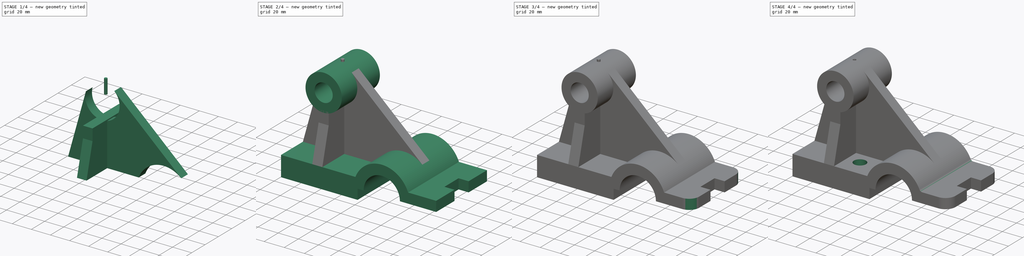
[diagram: build sequence overview — one tinted view per stage of 4, left to right]
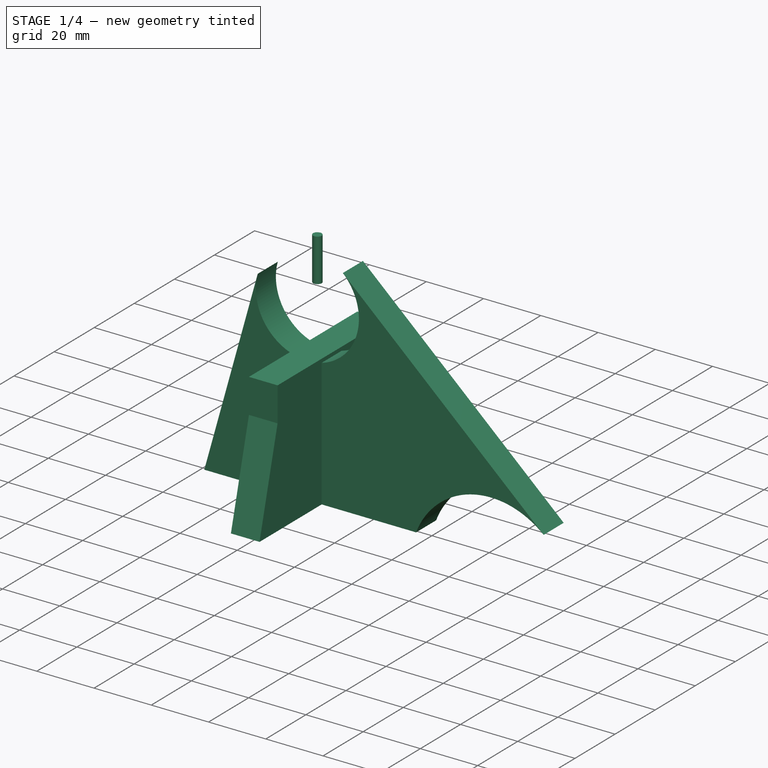
[diagram: stage 1 of 4 — iso view after this stage's code; geometry added in this stage tinted green]
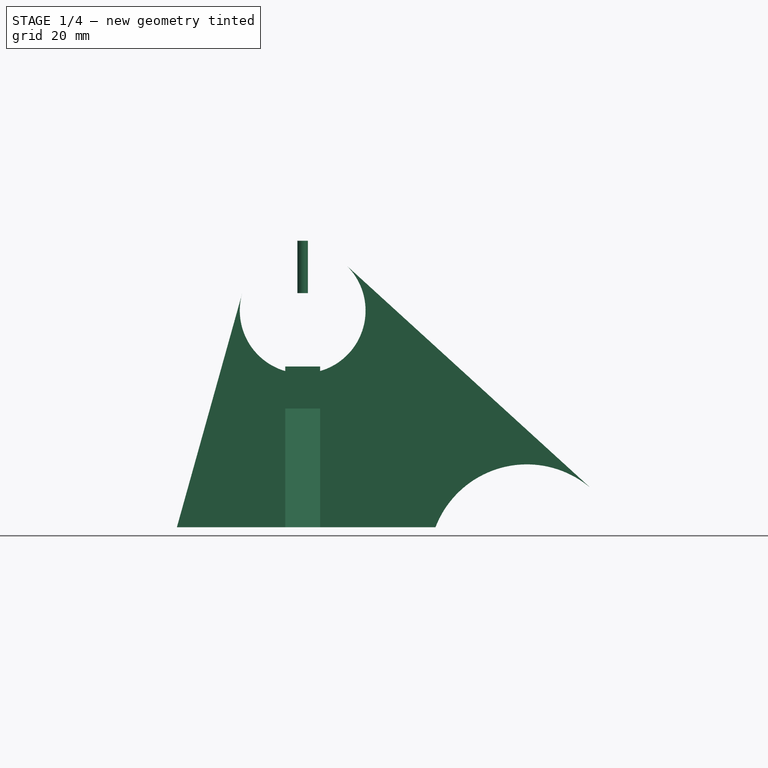
[diagram: stage 1 of 4 — front view after this stage's code; geometry added in this stage tinted green]
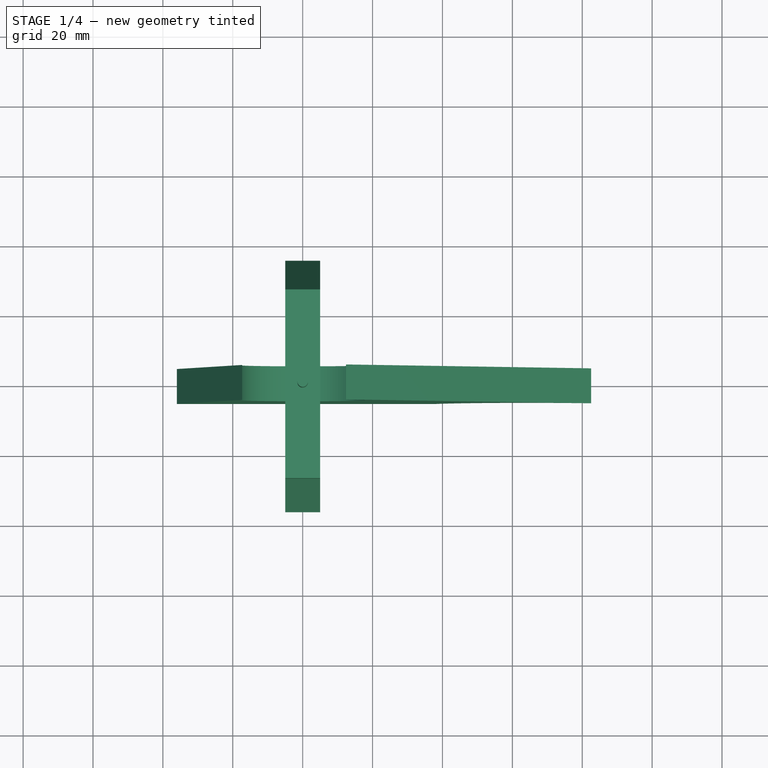
[diagram: stage 1 of 4 — top view after this stage's code; geometry added in this stage tinted green]
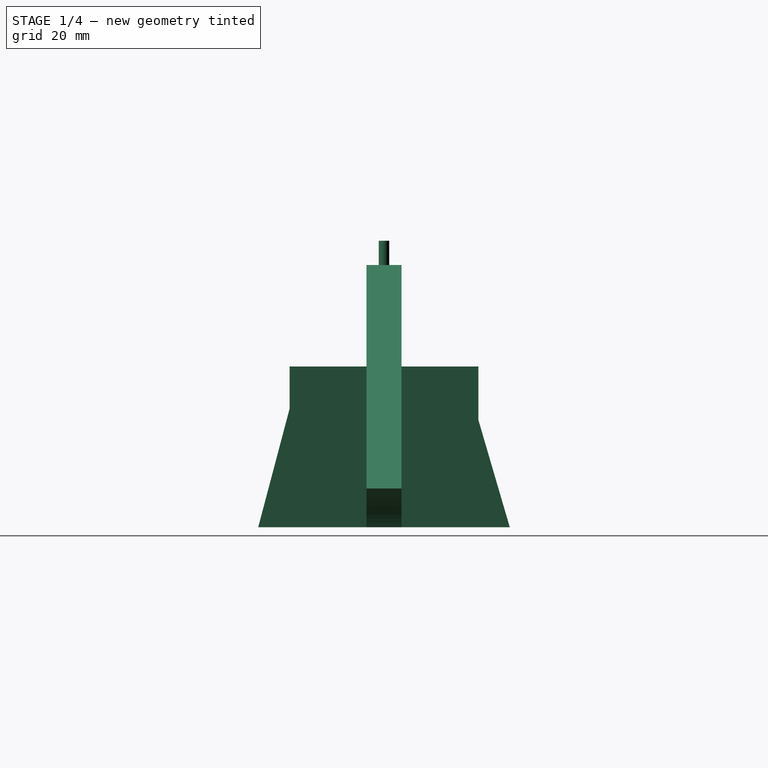
[diagram: stage 1 of 4 — right view after this stage's code; geometry added in this stage tinted green]
FCSTD DOCUMENT  (FreeCAD 0.16R)
Label: Fig 3.37 Final
License: All rights reserved
LicenseURL: http://en.wikipedia.org/wiki/All_rights_reserved
objects: Sketcher::SketchObject×6, PartDesign::Pad×4, PartDesign::Pocket×2, Part::MultiFuse×2, PartDesign::Fillet×2, Part::Cylinder×1, Part::Cut×1
note: 24 computed .brp shape members not serialized (recipe doc carries the construction recipe); baked Part::Feature solids carry a one-line shape summary decoded from their .brp

FEATURE [Sketcher::SketchObject] Sketch003
  Placement = pos=(0,0,0) rot=(-1,0,0;4.71239rad)
  sketch-geometry (9):
    g0: LineSegment StartX=0 StartY=20 StartZ=0 EndX=38 EndY=20 EndZ=0
    g1: ArcOfCircle CenterX=64.1534 CenterY=10 CenterZ=0 NormalX=0 NormalY=0 NormalZ=1 Radius=28 StartAngle=0.854155 EndAngle=2.77639
    g2: LineSegment [constr] StartX=0 StartY=20 StartZ=0 EndX=149.275 EndY=20 EndZ=0
    g3: ArcOfCircle CenterX=0 CenterY=82 CenterZ=0 NormalX=0 NormalY=0 NormalZ=1 Radius=18 StartAngle=4.71239 EndAngle=7.13595
    g4: LineSegment StartX=11.8422 StartY=95.5559 StartZ=0 EndX=82.5454 EndY=31.1125 EndZ=0
    g5: LineSegment [constr] StartX=-5.30882 StartY=10 StartZ=0 EndX=137.289 EndY=10 EndZ=0
    g6: ArcOfCircle CenterX=0 CenterY=82 CenterZ=0 NormalX=0 NormalY=0 NormalZ=1 Radius=18 StartAngle=2.86931 EndAngle=4.71239
    g7: LineSegment StartX=0 StartY=20 StartZ=0 EndX=-36 EndY=20 EndZ=0
    g8: LineSegment StartX=-36 StartY=20 StartZ=0 EndX=-17.3369 EndY=86.8408 EndZ=0
  constraints (21):
    c: PointOnObject(g3,g-2)
    c: PointOnObject(g0,g-2)
    c: Horizontal(g0)
    c: DistanceY(g-1,g0) = 20
    c: DistanceY(g-1,g3) = 64
    c: DistanceX(g0,g0) = 38
    c: Coincident(g1,g0)
    c: Horizontal(g2)
    c: Radius(g1) = 28
    c: Radius(g3) = 18
    c: PointOnObject(g3,g-2)
    c: Coincident(g1,g4)
    c: Coincident(g3,g4)
    c: Horizontal(g5)
    c: DistanceY(g-1,g5) = 10
    c: PointOnObject(g1,g5)
    c: Coincident(g6,g3)
    c: Coincident(g7,g8)
    c: Horizontal(g7)
    c: DistanceX(g7,g0) = 36
    c: Coincident(g6,g8)
FEATURE [PartDesign::Pad] Pad002
  Length = 10
  Length2 = 100
  Midplane = true
  Placement = pos=(0,0,0) rot=(-1,0,0;4.71239rad)
  Sketch = -> Sketch003
  Type = 0
FEATURE [Sketcher::SketchObject] Sketch004
  Placement = pos=(0,0,0) rot=(0.57735,0.57735,0.57735;2.0944rad)
  sketch-geometry (6):
    g0: LineSegment StartX=-36 StartY=20 StartZ=0 EndX=36 EndY=20 EndZ=0
    g1: LineSegment StartX=-36 StartY=20 StartZ=0 EndX=-27 EndY=54 EndZ=0
    g2: LineSegment StartX=36 StartY=20 StartZ=0 EndX=27 EndY=50.7498 EndZ=0
    g3: LineSegment StartX=-27 StartY=54 StartZ=0 EndX=-27 EndY=66 EndZ=0
    g4: LineSegment StartX=27 StartY=50.7498 StartZ=0 EndX=27 EndY=66 EndZ=0
    g5: LineSegment StartX=27 StartY=66 StartZ=0 EndX=-27 EndY=66 EndZ=0
  constraints (17):
    c: Horizontal(g0)
    c: DistanceY(g-1,g0) = 20
    c: DistanceX(g0,g0) = 72
    c: Symmetric(g0,g0,g-2)
    c: Coincident(g1,g0)
    c: Coincident(g2,g0)
    c: Coincident(g3,g1)
    c: Vertical(g3)
    c: Coincident(g4,g2)
    c: Vertical(g4)
    c: Coincident(g5,g4)
    c: Coincident(g5,g3)
    c: Horizontal(g5)
    c: Symmetric(g4,g3,g-2)
    c: DistanceY(g-1,g1) = 54
    c: DistanceY(g-1,g3) = 66
    c: DistanceX(g3,g4) = 54
FEATURE [PartDesign::Pad] Pad003
  Length = 10
  Length2 = 100
  Midplane = true
  Placement = pos=(0,0,0) rot=(0.57735,0.57735,0.57735;2.0944rad)
  Sketch = -> Sketch004
  Type = 0
FEATURE [Part::Cylinder] Cylinder  label="Cilindro"
  Angle = 360
  Height = 15
  Placement = pos=(0,0,87) rot=(0,0,1;0rad)
  Radius = 1.5
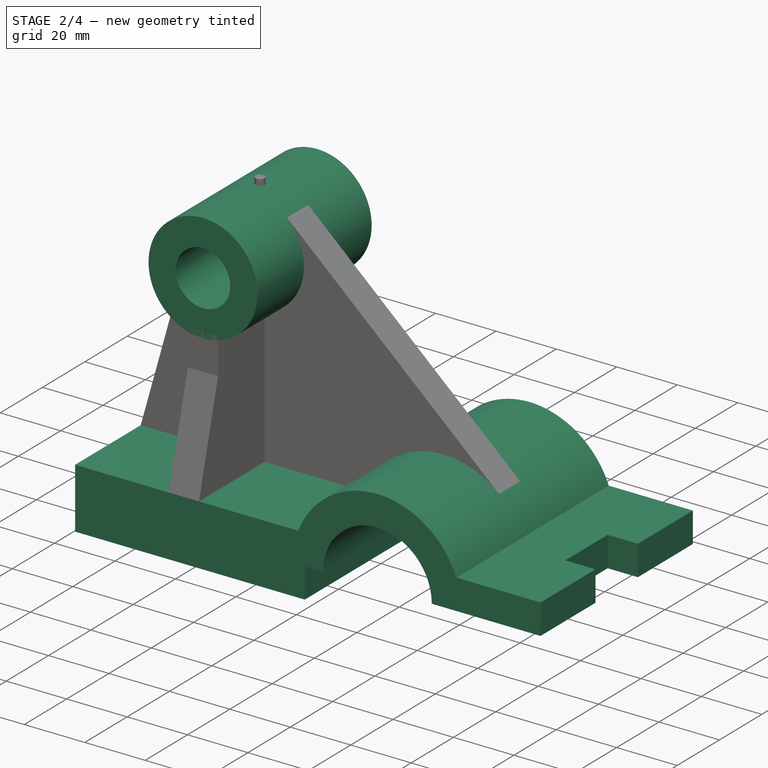
[diagram: stage 2 of 4 — iso view after this stage's code; geometry added in this stage tinted green]
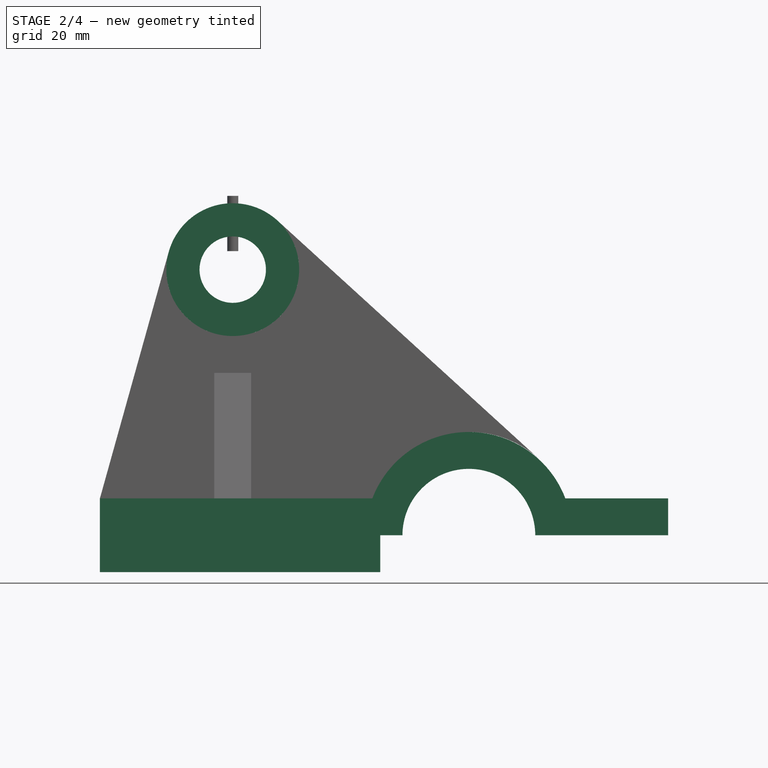
[diagram: stage 2 of 4 — front view after this stage's code; geometry added in this stage tinted green]
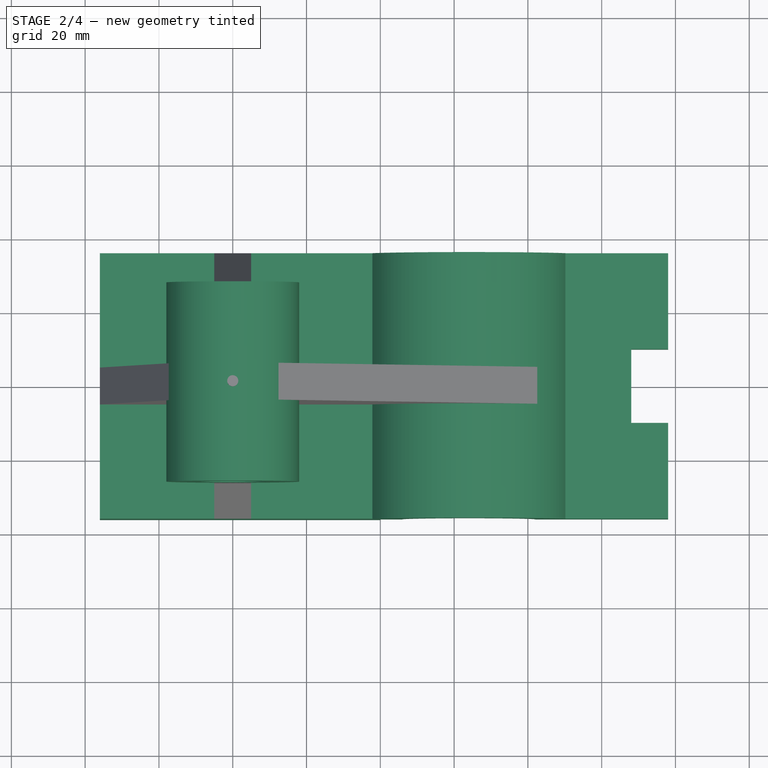
[diagram: stage 2 of 4 — top view after this stage's code; geometry added in this stage tinted green]
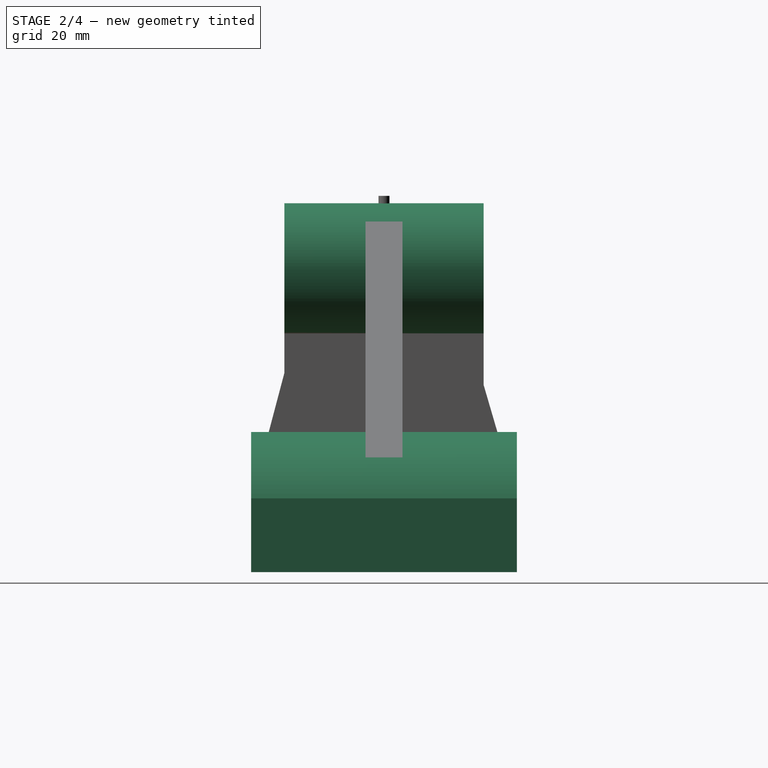
[diagram: stage 2 of 4 — right view after this stage's code; geometry added in this stage tinted green]
FEATURE [Sketcher::SketchObject] Sketch
  Placement = pos=(0,0,0) rot=(1,0,0;1.5708rad)
  sketch-geometry (11):
    g0: LineSegment StartX=0 StartY=0 StartZ=0 EndX=-36 EndY=0 EndZ=0
    g1: LineSegment StartX=-36 StartY=0 StartZ=0 EndX=-36 EndY=20 EndZ=0
    g2: LineSegment StartX=-36 StartY=20 StartZ=0 EndX=37.8466 EndY=20 EndZ=0
    g3: ArcOfCircle CenterX=64 CenterY=10 CenterZ=0 NormalX=0 NormalY=0 NormalZ=1 Radius=28 StartAngle=0.365207 EndAngle=2.77639
    g4: LineSegment StartX=90.1534 StartY=20 StartZ=0 EndX=118 EndY=20 EndZ=0
    g5: LineSegment StartX=118 StartY=20 StartZ=0 EndX=118 EndY=10 EndZ=0
    g6: LineSegment StartX=118 StartY=10 StartZ=0 EndX=82 EndY=10 EndZ=0
    g7: ArcOfCircle CenterX=64 CenterY=10 CenterZ=0 NormalX=0 NormalY=0 NormalZ=1 Radius=18 StartAngle=0 EndAngle=3.14159
    g8: LineSegment StartX=46 StartY=10 StartZ=0 EndX=40 EndY=10 EndZ=0
    g9: LineSegment StartX=40 StartY=10 StartZ=0 EndX=40 EndY=0 EndZ=0
    g10: LineSegment StartX=40 StartY=0 StartZ=0 EndX=0 EndY=0 EndZ=0
  constraints (33):
    c: Coincident(g-1,g0)
    c: Horizontal(g0)
    c: Coincident(g0,g1)
    c: Vertical(g1)
    c: Coincident(g1,g2)
    c: Horizontal(g2)
    c: Coincident(g3,g2)
    c: Coincident(g3,g4)
    c: Horizontal(g4)
    c: Coincident(g4,g5)
    c: Coincident(g5,g6)
    c: Horizontal(g6)
    c: DistanceY(g1,g1) = 20
    c: Vertical(g5)
    c: DistanceY(g-1,g4) = 20
    c: DistanceY(g5,g5) = 10
    c: DistanceY(g-1,g3) = 10
    c: Radius(g3) = 28
    c: DistanceX(g1,g4) = 154
    c: DistanceX(g3,g4) = 54
    c: Coincident(g7,g3)
    c: Coincident(g7,g6)
    c: Radius(g7) = 18
    c: Coincident(g7,g8)
    c: Coincident(g8,g9)
    c: Vertical(g9)
    c: Coincident(g9,g10)
    c: Coincident(g10,g-1)
    c: Horizontal(g10)
    c: DistanceX(g8,g8) = 6
    c: DistanceY(g9,g9) = 10
    c: DistanceX(g-1,g5) = 118
    c: Perpendicular(g7,g8)
FEATURE [PartDesign::Pad] Pad
  Length = 72
  Length2 = 100
  Midplane = true
  Placement = pos=(0,0,0) rot=(1,0,0;1.5708rad)
  Sketch = -> Sketch
  Type = 0
FEATURE [Sketcher::SketchObject] Sketch001
  ExternalGeometry = -> [Pad]
  Placement = pos=(0,0,20) rot=(0,0,1;3.14159rad)
  Support = -> Pad [Face4]
  sketch-geometry (4):
    g0: LineSegment StartX=-126.233 StartY=10 StartZ=0 EndX=-108 EndY=10 EndZ=0
    g1: LineSegment StartX=-108 StartY=10 StartZ=0 EndX=-108 EndY=-10 EndZ=0
    g2: LineSegment StartX=-108 StartY=-10 StartZ=0 EndX=-126.233 EndY=-10 EndZ=0
    g3: LineSegment StartX=-126.233 StartY=-10 StartZ=0 EndX=-126.233 EndY=10 EndZ=0
  constraints (11):
    c: Coincident(g0,g1)
    c: Coincident(g1,g2)
    c: Coincident(g2,g3)
    c: Coincident(g3,g0)
    c: Horizontal(g0)
    c: Horizontal(g2)
    c: Vertical(g1)
    c: Vertical(g3)
    c: DistanceY(g3,g3) = 20
    c: Symmetric(g0,g1,g-1)
    c: DistanceX(g-3,g0) = 10
FEATURE [PartDesign::Pocket] Pocket
  Length = 5
  Placement = pos=(0,0,0) rot=(1,0,0;1.5708rad)
  Sketch = -> Sketch001
  Type = 1
FEATURE [Sketcher::SketchObject] Sketch002
  Placement = pos=(0,0,0) rot=(-1,0,0;4.71239rad)
  sketch-geometry (2):
    g0: Circle CenterX=0 CenterY=82 CenterZ=0 NormalX=0 NormalY=0 NormalZ=1 Radius=18
    g1: Circle CenterX=0 CenterY=82 CenterZ=0 NormalX=0 NormalY=0 NormalZ=1 Radius=9
  constraints (5):
    c: PointOnObject(g0,g-2)
    c: DistanceY(g-1,g0) = 82
    c: Radius(g0) = 18
    c: Radius(g1) = 9
    c: Coincident(g0,g1)
FEATURE [PartDesign::Pad] Pad001
  Length = 54
  Length2 = 100
  Midplane = true
  Placement = pos=(0,0,0) rot=(-1,0,0;4.71239rad)
  Sketch = -> Sketch002
  Type = 0
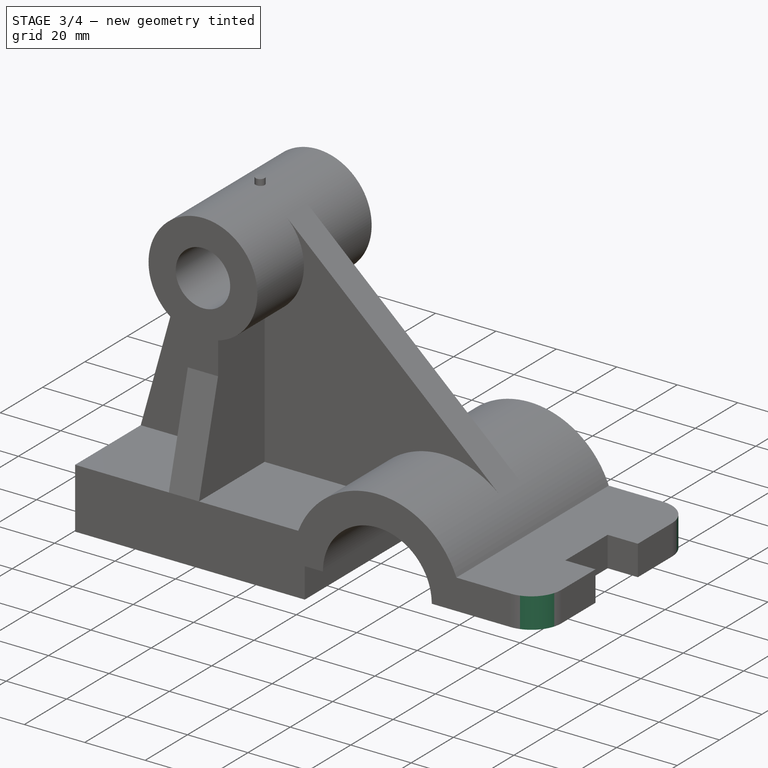
[diagram: stage 3 of 4 — iso view after this stage's code; geometry added in this stage tinted green]
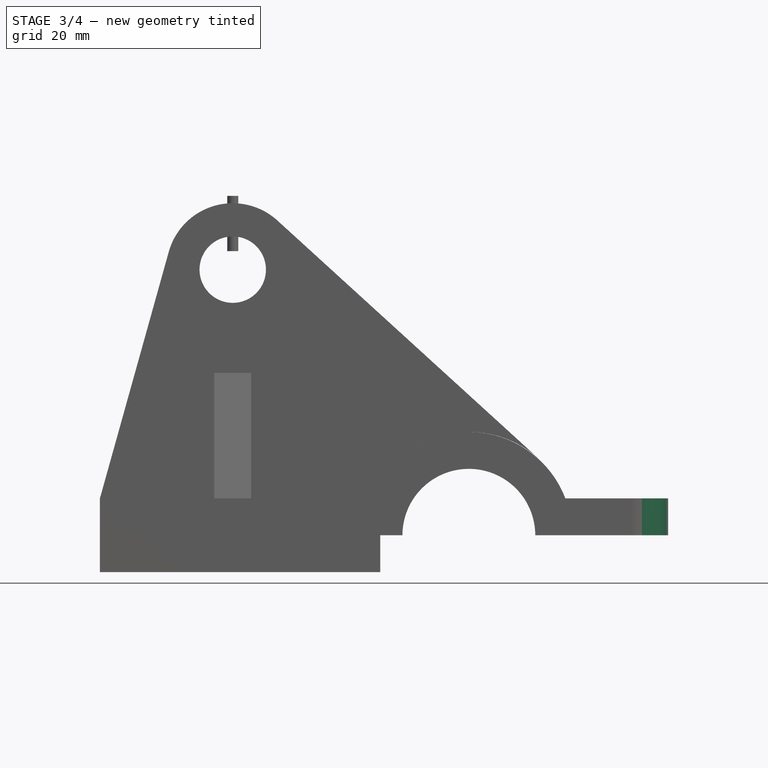
[diagram: stage 3 of 4 — front view after this stage's code; geometry added in this stage tinted green]
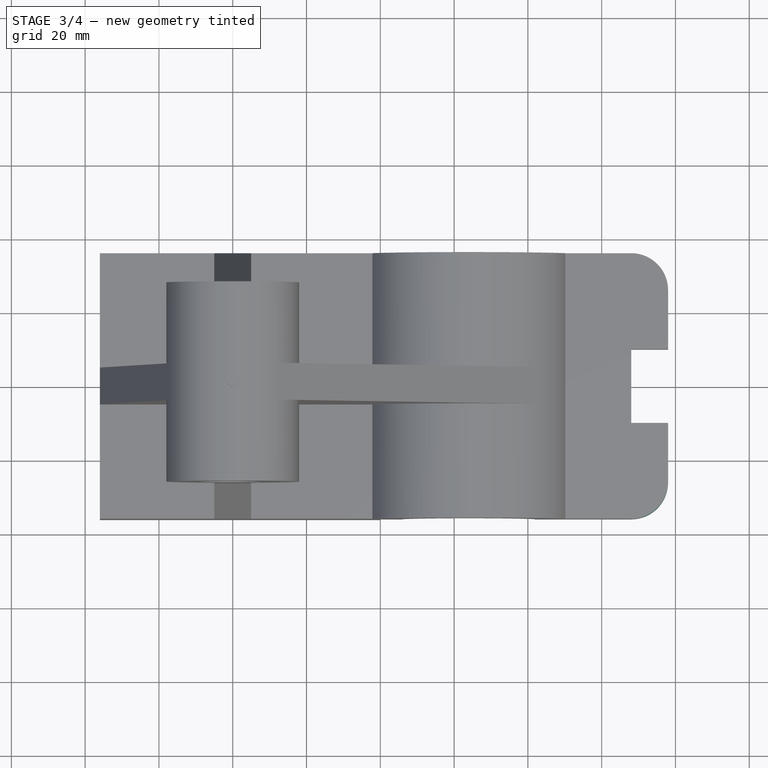
[diagram: stage 3 of 4 — top view after this stage's code; geometry added in this stage tinted green]
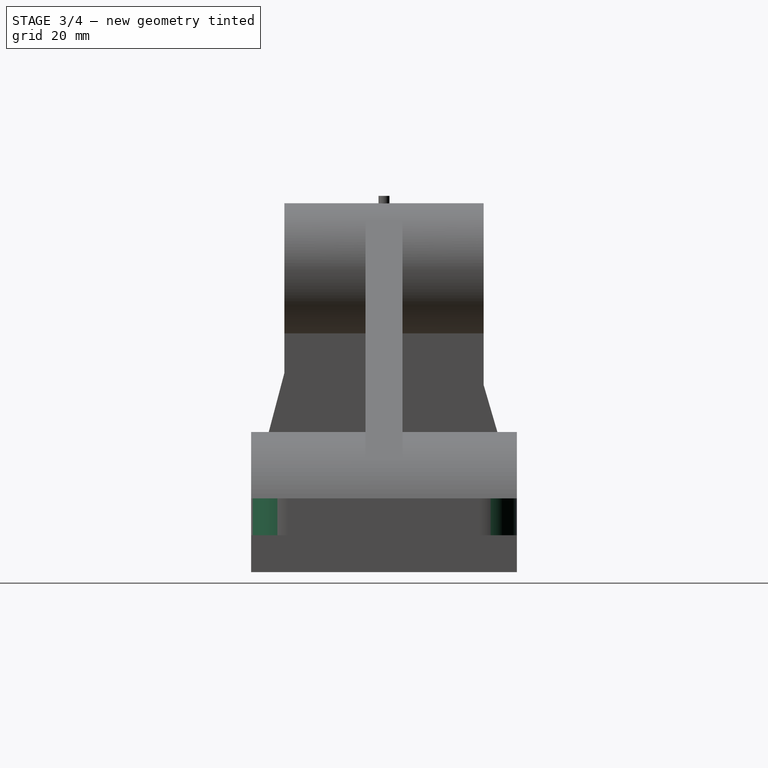
[diagram: stage 3 of 4 — right view after this stage's code; geometry added in this stage tinted green]
FEATURE [Part::MultiFuse] Fusion
  Shapes = -> [Pocket,Pad001,Pad002]
FEATURE [Part::MultiFuse] Fusion001
  Shapes = -> [Pad003,Fusion]
FEATURE [PartDesign::Fillet] Fillet
  Base = -> Fusion001 [Edge28,Edge19]
  Radius = 10
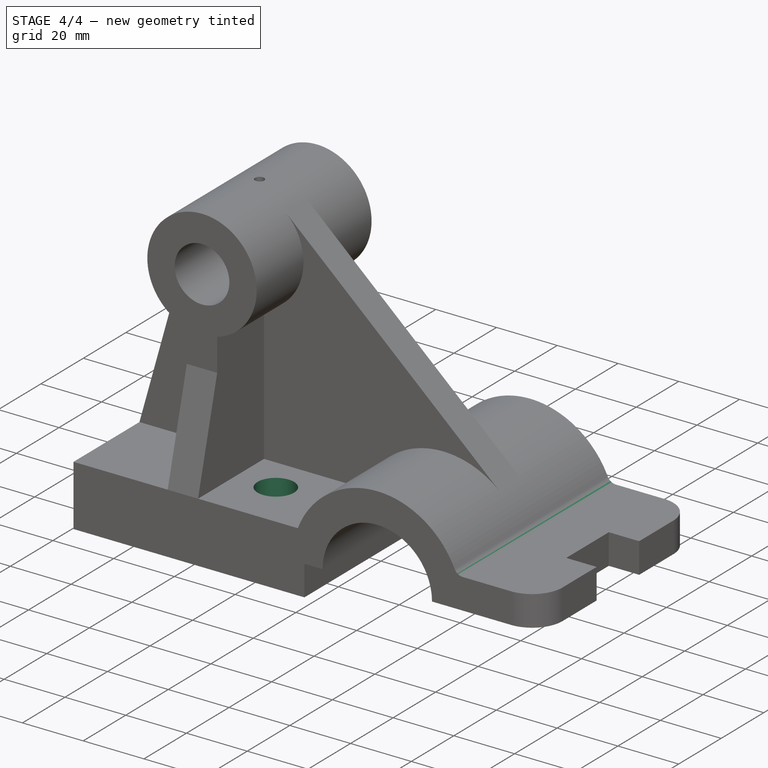
[diagram: stage 4 of 4 — iso view after this stage's code; geometry added in this stage tinted green]
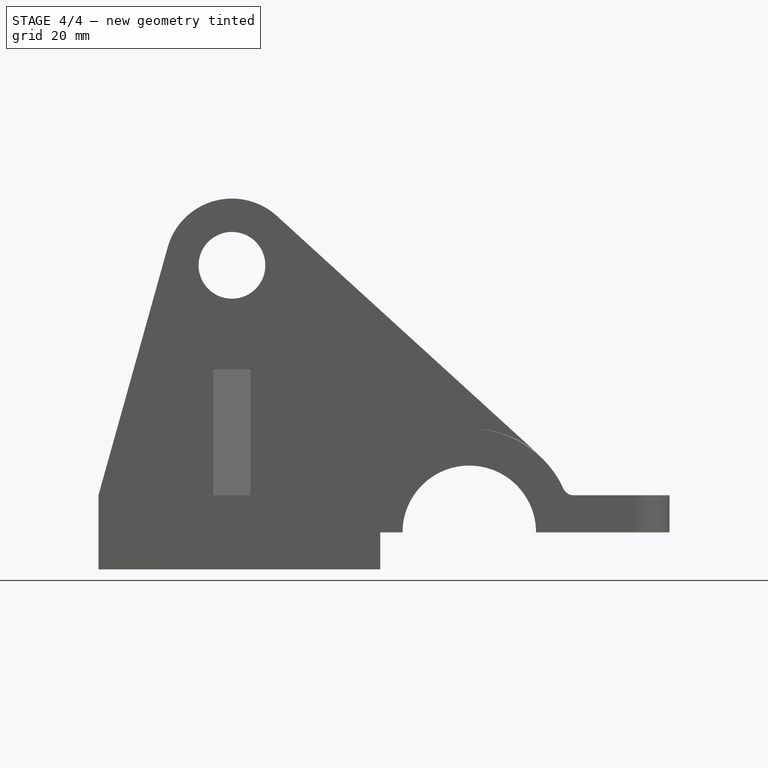
[diagram: stage 4 of 4 — front view after this stage's code; geometry added in this stage tinted green]
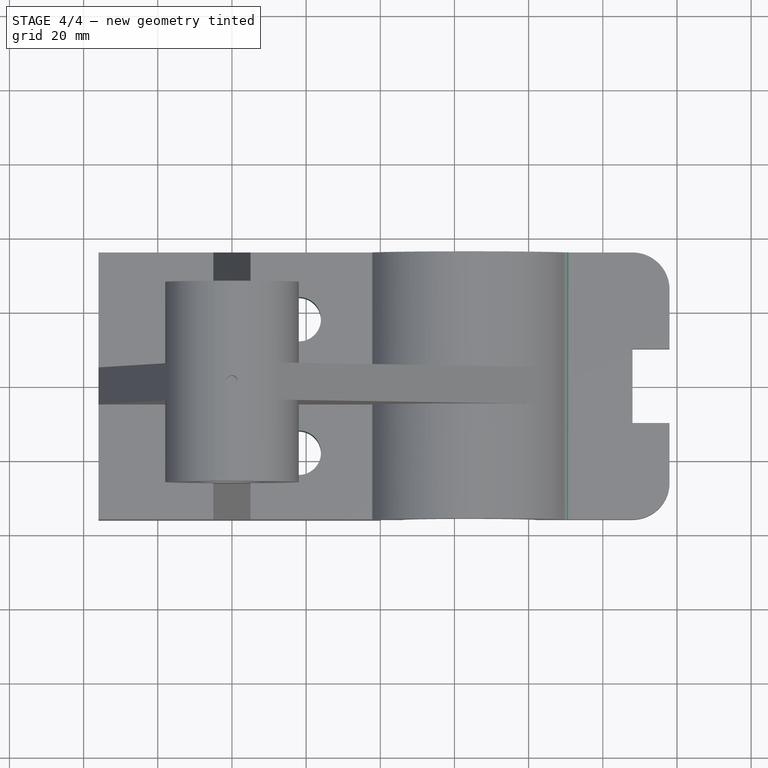
[diagram: stage 4 of 4 — top view after this stage's code; geometry added in this stage tinted green]
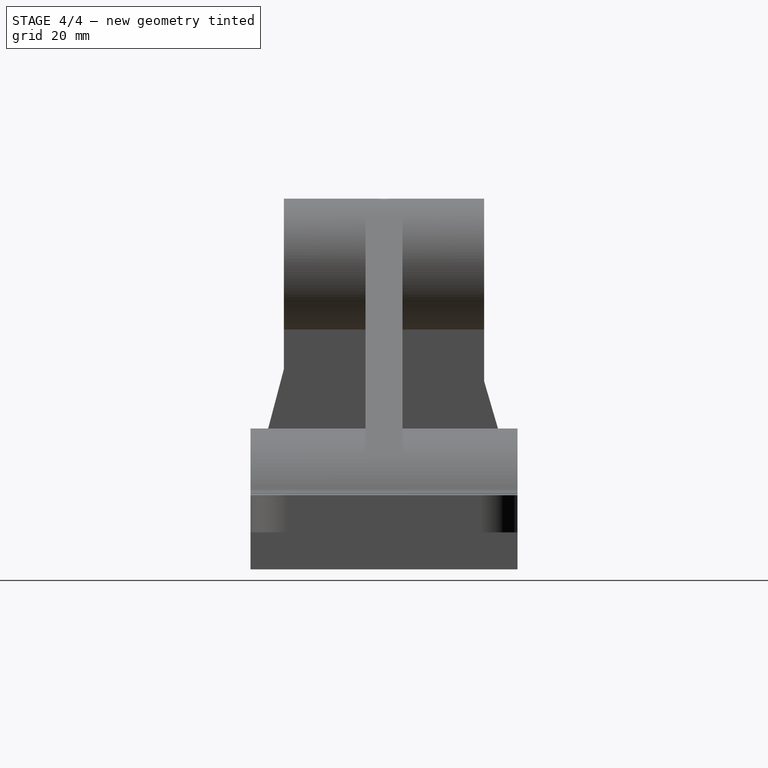
[diagram: stage 4 of 4 — right view after this stage's code; geometry added in this stage tinted green]
FEATURE [PartDesign::Fillet] Fillet001
  Base = -> Fillet [Edge26]
  Radius = 3
FEATURE [Sketcher::SketchObject] Sketch005
  ExternalGeometry = -> [Fillet001]
  Placement = pos=(0,0,20) rot=(0,0,1;0rad)
  Support = -> Fillet001 [Face23]
  sketch-geometry (2):
    g0: Circle CenterX=18 CenterY=-18 CenterZ=0 NormalX=0 NormalY=0 NormalZ=1 Radius=6
    g1: Circle CenterX=18 CenterY=18 CenterZ=0 NormalX=0 NormalY=0 NormalZ=1 Radius=6
  constraints (4):
    c: Radius(g0) = 6
    c: DistanceY(g-3,g0) = 18
    c: DistanceX(g-1,g0) = 18
    c: Radius(g1) = 6
FEATURE [PartDesign::Pocket] Pocket001
  Length = 5
  Sketch = -> Sketch005
  Type = 1
FEATURE [Part::Cut] Cut
  Base = -> Pocket001
  Tool = -> Cylinder
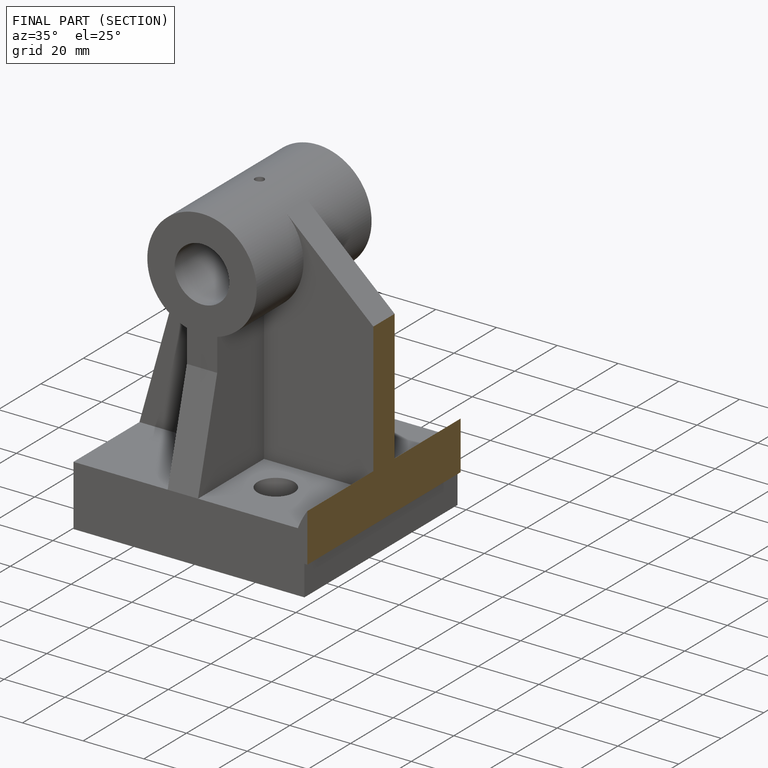
[diagram: finished part — half-section view (interior)]
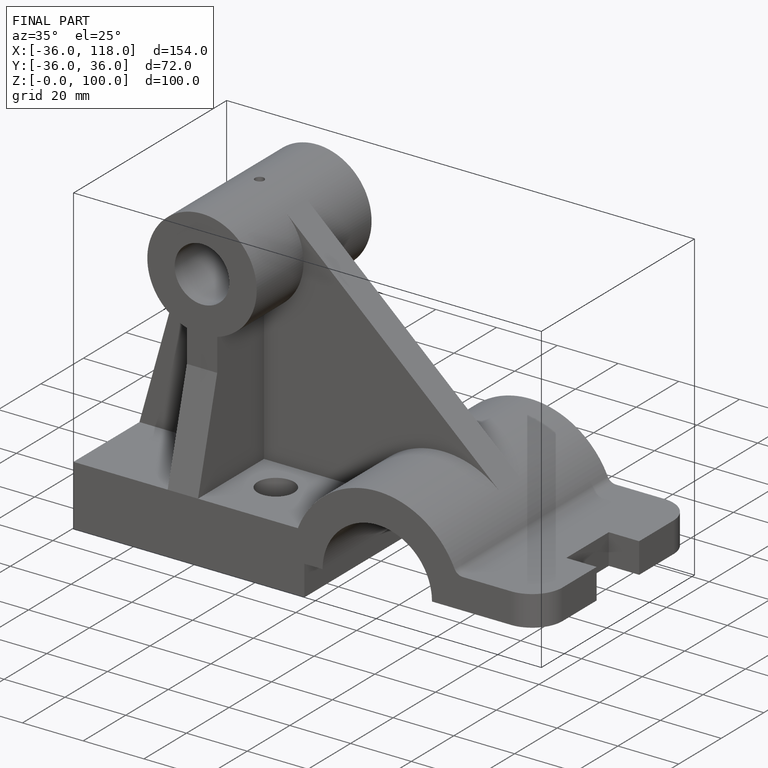
[diagram: finished part — iso view with bounding-box wireframe]
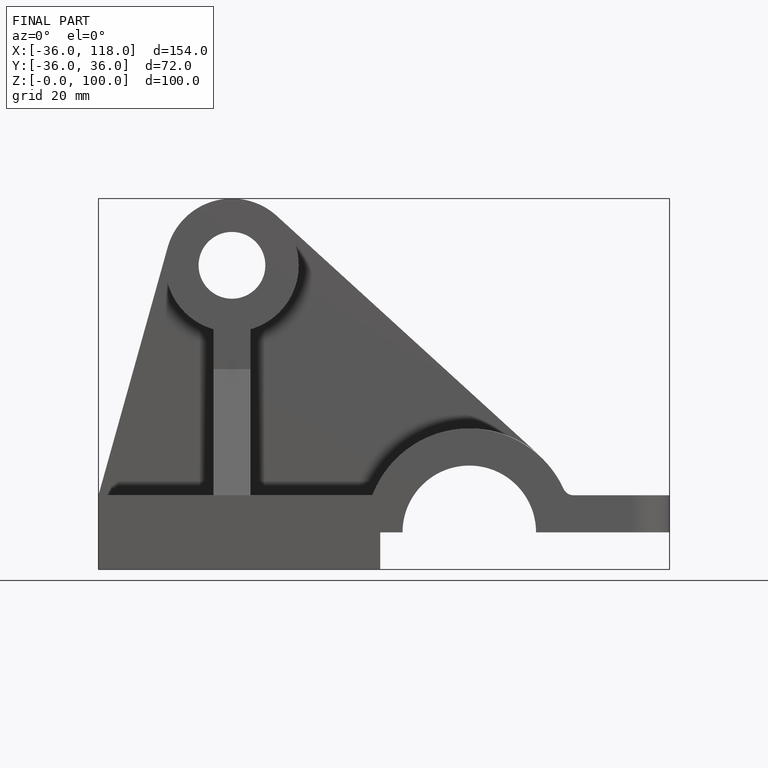
[diagram: finished part — front view with bounding-box wireframe]
